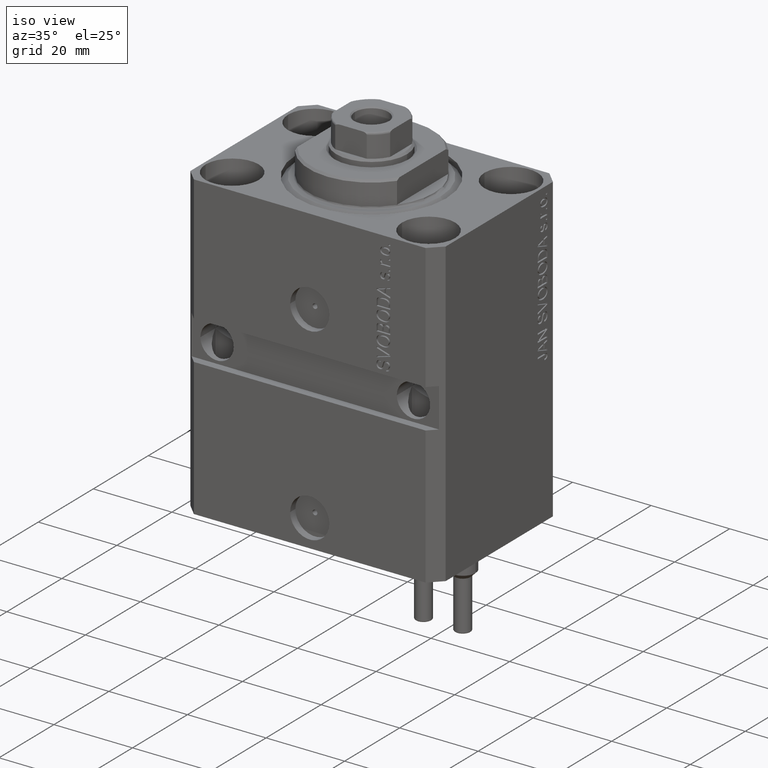
[diagram: clean part render]
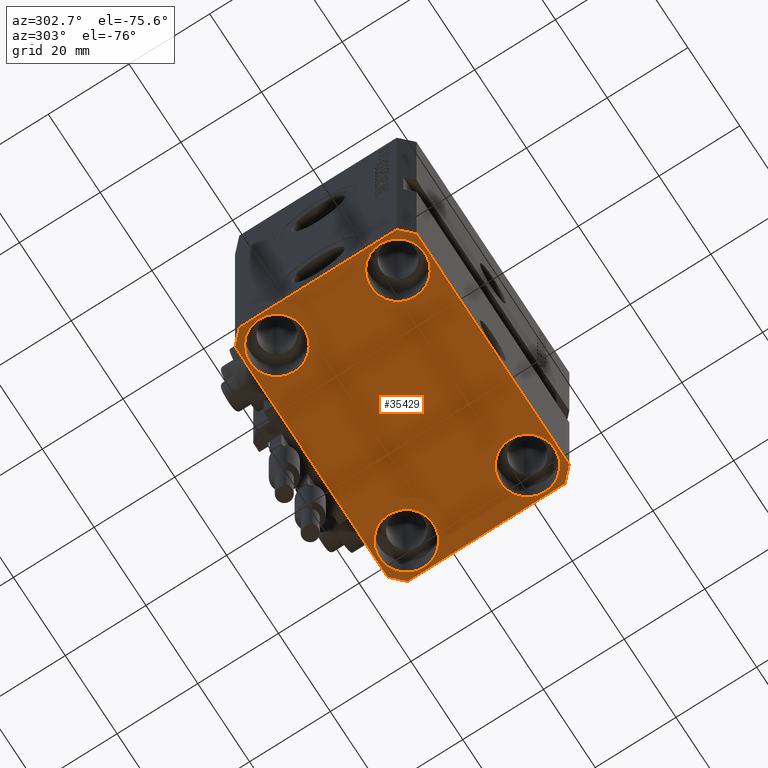
[diagram: tour spotlight — one face highlighted and labeled with its STEP entity id]
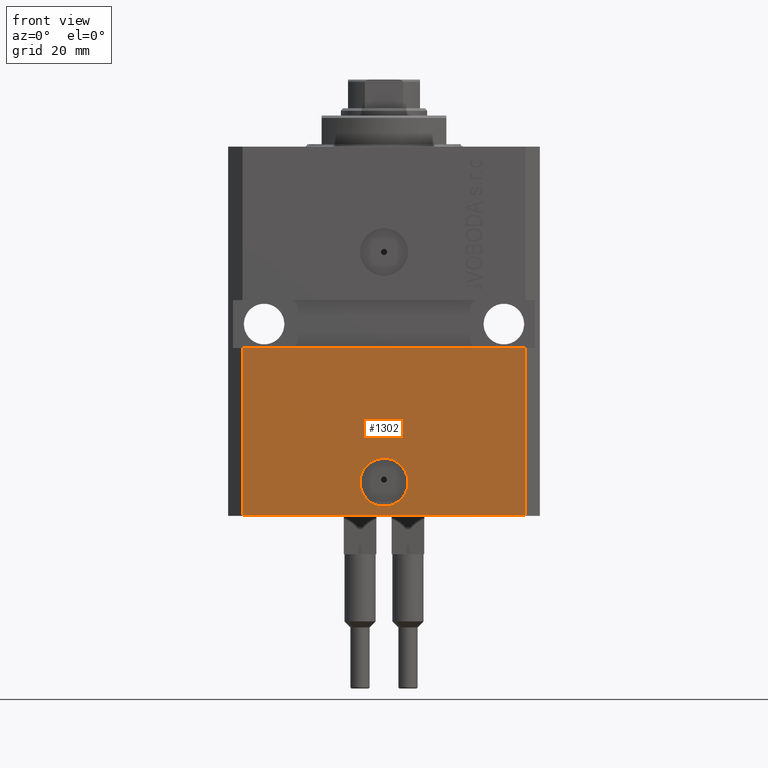
[diagram: tour spotlight — one face highlighted and labeled with its STEP entity id]
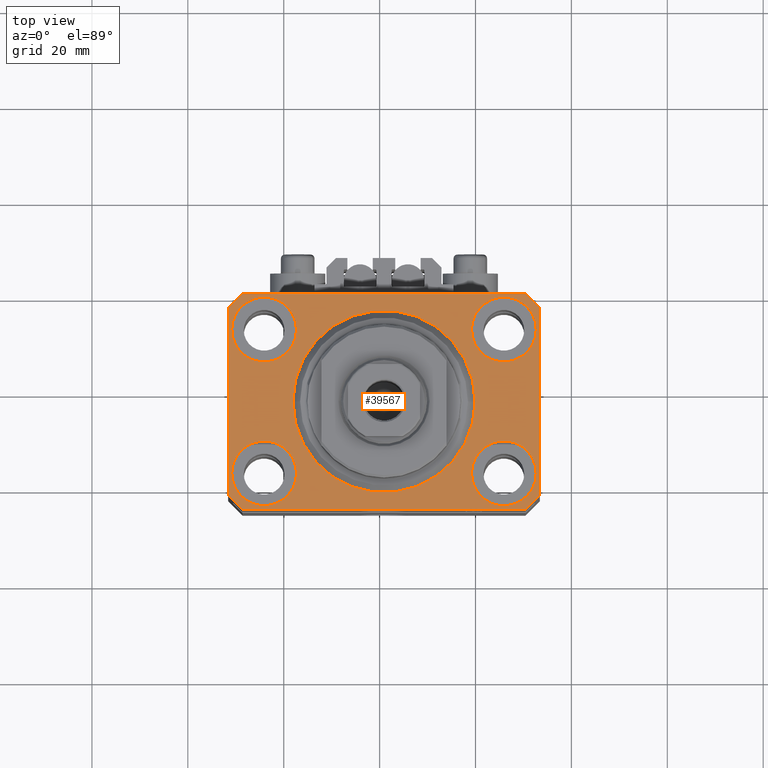
[diagram: tour spotlight — one face highlighted and labeled with its STEP entity id]
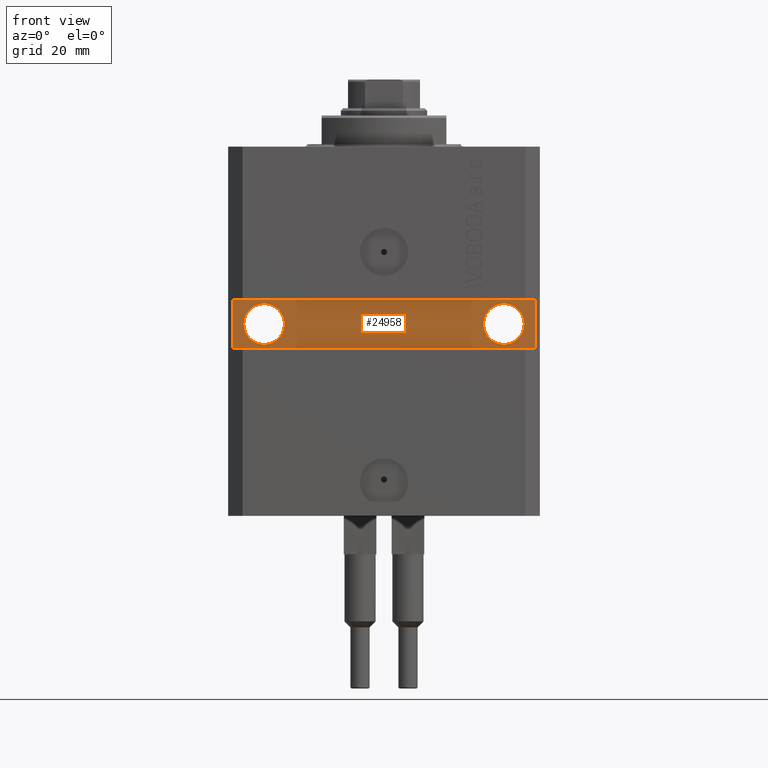
[diagram: tour spotlight — one face highlighted and labeled with its STEP entity id]
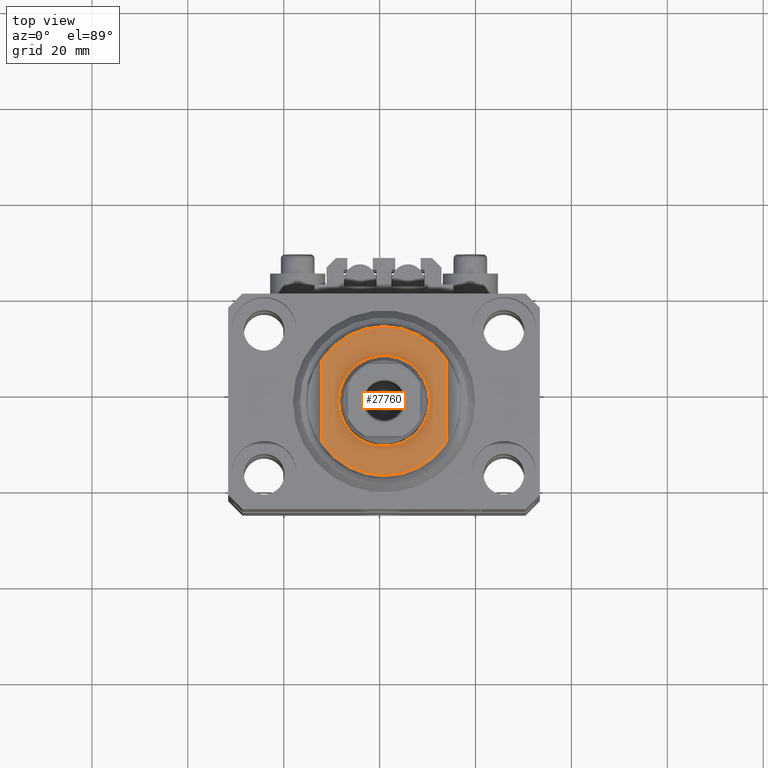
[diagram: tour spotlight — one face highlighted and labeled with its STEP entity id]
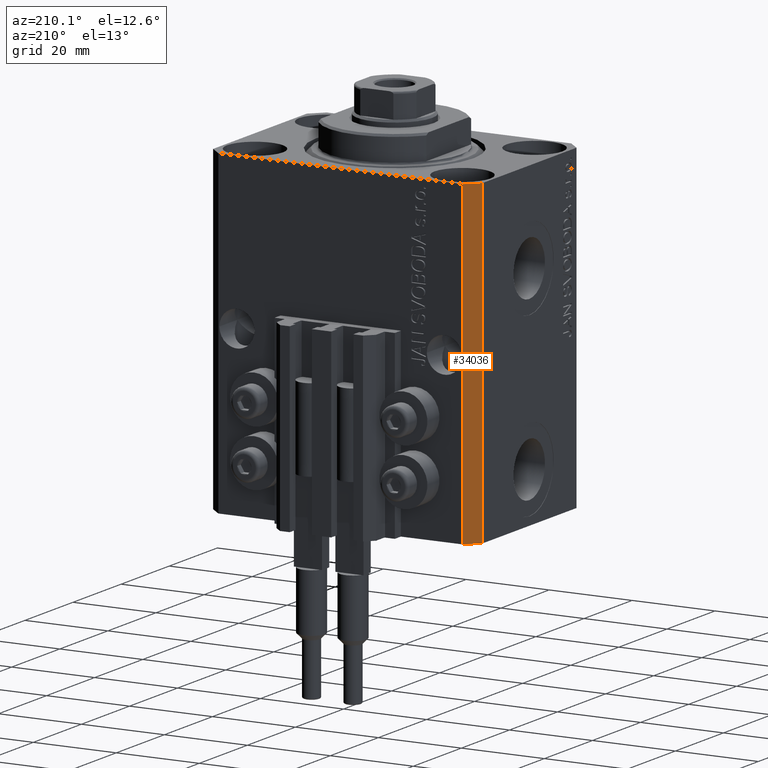
[diagram: tour spotlight — one face highlighted and labeled with its STEP entity id]
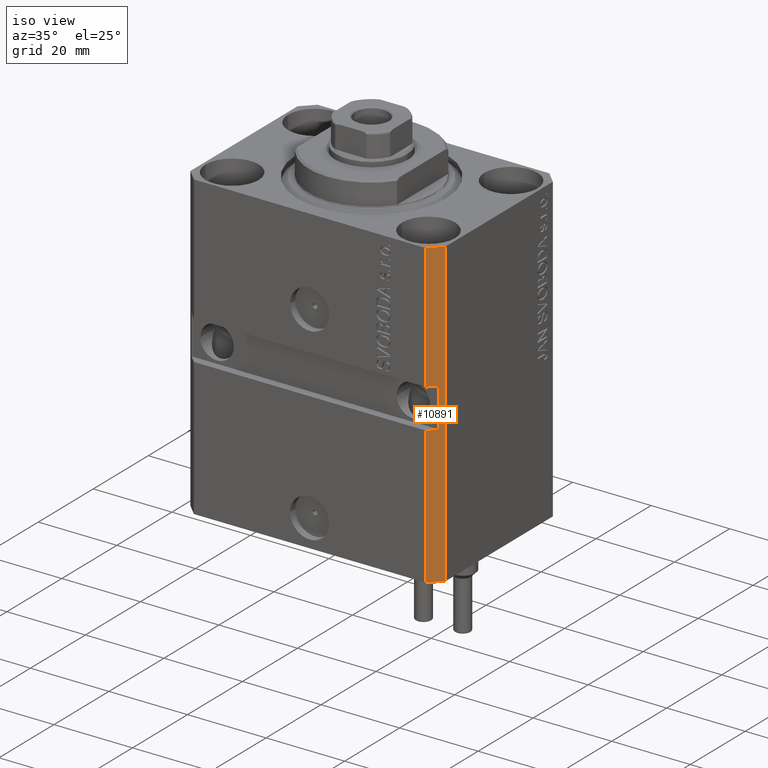
[diagram: tour spotlight — one face highlighted and labeled with its STEP entity id]
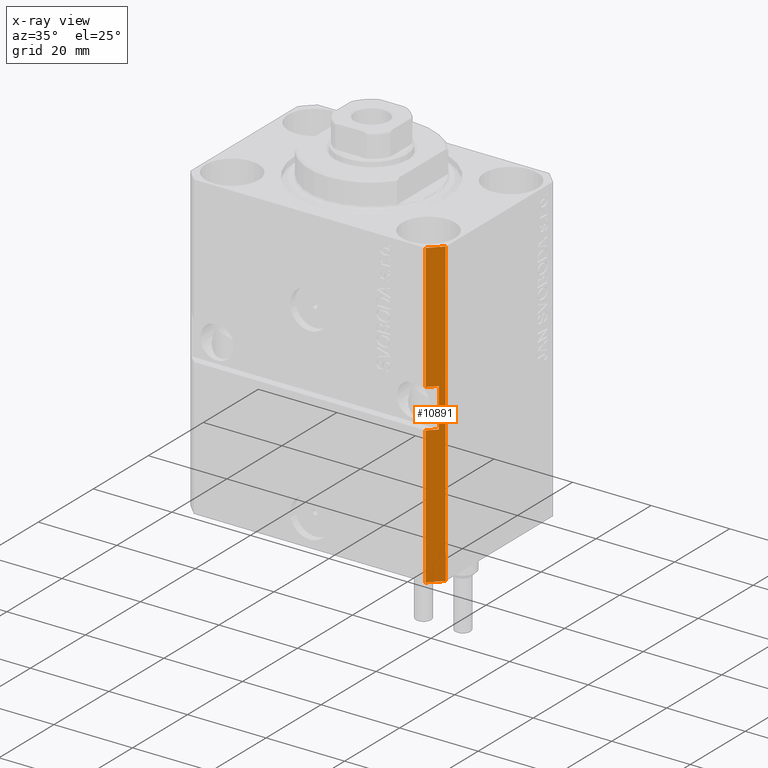
[diagram: x-ray of the same camera — body ghosted, this tour face saturated]
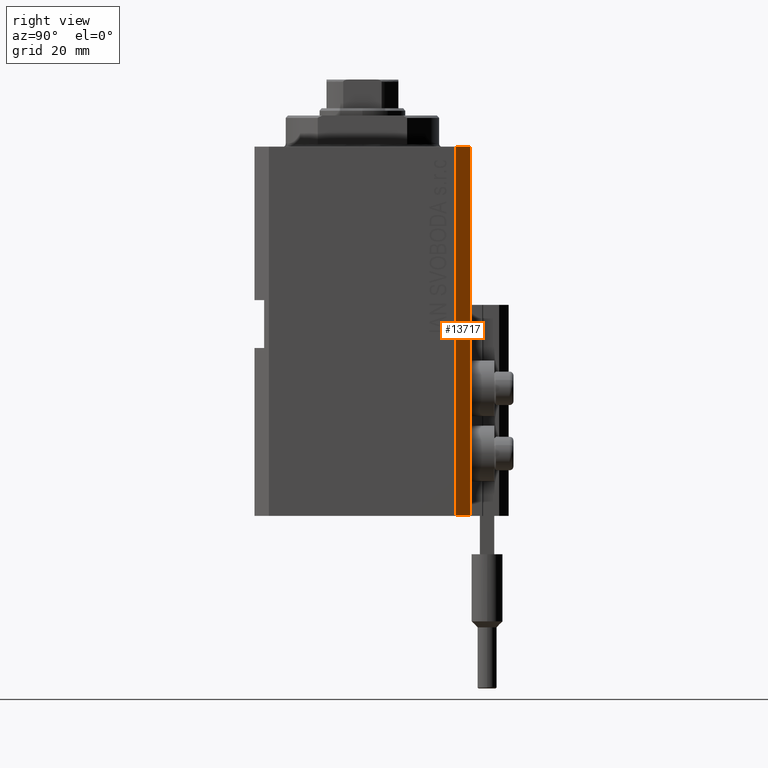
[diagram: tour spotlight — one face highlighted and labeled with its STEP entity id]
A machine part: a face-by-face anatomy tour. The part has 1119 B-rep faces; the first image is the clean iso view, then the 8 largest visible faces are spotlighted one at a time (largest first), each with its STEP entity span.

Face 1 — auxiliary view, entity #35429. In plain terms, the highlighted planar face has unit normal (0, 0, 1).
Definition (entity closure, byte-faithful):
#181 = CARTESIAN_POINT ( 'NONE',  ( 18.25000000004154543, 15.00000000000000888, -77.00000000000000000 ) ) ;
#194 = CARTESIAN_POINT ( 'NONE',  ( 29.49999999999650413, -22.49999999999949196, -77.00000000000000000 ) ) ;
#901 = CIRCLE ( 'NONE', #14847, 6.749999999958452790 ) ;
#1076 = CARTESIAN_POINT ( 'NONE',  ( -25.00000000000000355, -15.00000000000000000, -77.00000000000000000 ) ) ;
#1213 = CARTESIAN_POINT ( 'NONE',  ( -31.75000000004154899, -15.00000000000000000, -77.00000000000000000 ) ) ;
#1489 = DIRECTION ( 'NONE',  ( -1.000000000000000000, -2.352167425053553784E-16, 0.000000000000000000 ) ) ;
#2154 = CARTESIAN_POINT ( 'NONE',  ( 29.49999999999707967, 22.49999999999951328, -77.00000000000000000 ) ) ;
#2239 = ORIENTED_EDGE ( 'NONE', *, *, #25468, .F. ) ;
#3737 = CARTESIAN_POINT ( 'NONE',  ( 31.74999999997746869, -15.00000000000000000, -77.00000000000000000 ) ) ;
#3877 = EDGE_CURVE ( 'NONE', #16765, #36095, #39662, .T. ) ;
#3886 = DIRECTION ( 'NONE',  ( 0.7071067811865474617, -0.7071067811865474617, 0.000000000000000000 ) ) ;
#3991 = ORIENTED_EDGE ( 'NONE', *, *, #22191, .F. ) ;
#4217 = VECTOR ( 'NONE', #4449, 1000.000000000000000 ) ;
#4270 = DIRECTION ( 'NONE',  ( 1.000000000000000000, 0.000000000000000000, 0.000000000000000000 ) ) ;
#4275 = VERTEX_POINT ( 'NONE', #37353 ) ;
#4445 = EDGE_LOOP ( 'NONE', ( #30600, #32369 ) ) ;
#4449 = DIRECTION ( 'NONE',  ( 0.000000000000000000, -1.000000000000000000, 0.000000000000000000 ) ) ;
#4969 = ORIENTED_EDGE ( 'NONE', *, *, #43478, .F. ) ;
#5005 = EDGE_LOOP ( 'NONE', ( #33991, #40709 ) ) ;
#5171 = VERTEX_POINT ( 'NONE', #31210 ) ;
#5188 = EDGE_CURVE ( 'NONE', #28164, #16553, #29612, .T. ) ;
#5459 = CARTESIAN_POINT ( 'NONE',  ( 18.25000000002253842, -15.00000000000000000, -77.00000000000000000 ) ) ;
#5704 = CARTESIAN_POINT ( 'NONE',  ( 29.49999999999650413, -22.49999999999949196, -77.00000000000000000 ) ) ;
#5903 = DIRECTION ( 'NONE',  ( -0.7071067811865352493, 0.7071067811865597852, 0.000000000000000000 ) ) ;
#6093 = LINE ( 'NONE', #47526, #28925 ) ;
#7668 = DIRECTION ( 'NONE',  ( 1.000000000000000000, 0.000000000000000000, 0.000000000000000000 ) ) ;
#7725 = EDGE_CURVE ( 'NONE', #16553, #43922, #39478, .T. ) ;
#7816 = VERTEX_POINT ( 'NONE', #181 ) ;
#8794 = EDGE_LOOP ( 'NONE', ( #42603, #3991, #35509, #2239, #26176, #22117, #4969, #25549 ) ) ;
#9260 = CIRCLE ( 'NONE', #30987, 6.750000000022533087 ) ;
#9324 = CARTESIAN_POINT ( 'NONE',  ( 32.49999999999651124, -19.49999999999949196, -77.00000000000000000 ) ) ;
#11079 = FACE_BOUND ( 'NONE', #39778, .T. ) ;
#11171 = VERTEX_POINT ( 'NONE', #5459 ) ;
#11288 = DIRECTION ( 'NONE',  ( 1.000000000000000000, 0.000000000000000000, 0.000000000000000000 ) ) ;
#11546 = FACE_OUTER_BOUND ( 'NONE', #8794, .T. ) ;
#11553 = DIRECTION ( 'NONE',  ( 1.334402673828349134E-14, 1.000000000000000000, 0.000000000000000000 ) ) ;
#11592 = CARTESIAN_POINT ( 'NONE',  ( -32.49999999999650413, 19.49999999999949907, -77.00000000000000000 ) ) ;
#11789 = FACE_BOUND ( 'NONE', #4445, .T. ) ;
#12075 = CARTESIAN_POINT ( 'NONE',  ( 24.99999999999999645, 15.00000000000000888, -77.00000000000000000 ) ) ;
#12681 = EDGE_CURVE ( 'NONE', #4275, #29171, #43531, .T. ) ;
#13870 = VERTEX_POINT ( 'NONE', #9324 ) ;
#14083 = AXIS2_PLACEMENT_3D ( 'NONE', #31128, #25051, #18264 ) ;
#14388 = EDGE_CURVE ( 'NONE', #19882, #11171, #19592, .T. ) ;
#14847 = AXIS2_PLACEMENT_3D ( 'NONE', #12075, #41204, #15718 ) ;
#14941 = DIRECTION ( 'NONE',  ( 1.000000000000000000, 0.000000000000000000, 0.000000000000000000 ) ) ;
#14945 = CARTESIAN_POINT ( 'NONE',  ( 0.000000000000000000, 0.000000000000000000, -77.00000000000000000 ) ) ;
#15191 = PLANE ( 'NONE',  #37362 ) ;
#15222 = LINE ( 'NONE', #194, #23170 ) ;
#15226 = ORIENTED_EDGE ( 'NONE', *, *, #24905, .T. ) ;
#15718 = DIRECTION ( 'NONE',  ( 1.000000000000000000, 0.000000000000000000, 0.000000000000000000 ) ) ;
#15951 = CARTESIAN_POINT ( 'NONE',  ( -29.49999999999650413, -22.49999999999949907, -77.00000000000000000 ) ) ;
#16348 = EDGE_CURVE ( 'NONE', #33525, #16765, #6093, .T. ) ;
#16553 = VERTEX_POINT ( 'NONE', #15951 ) ;
#16555 = DIRECTION ( 'NONE',  ( -0.000000000000000000, -0.000000000000000000, 1.000000000000000000 ) ) ;
#16765 = VERTEX_POINT ( 'NONE', #47943 ) ;
#17056 = CARTESIAN_POINT ( 'NONE',  ( 32.49999999999702993, 19.49999999999945999, -77.00000000000000000 ) ) ;
#17269 = AXIS2_PLACEMENT_3D ( 'NONE', #39341, #16555, #46641 ) ;
#17577 = DIRECTION ( 'NONE',  ( -0.000000000000000000, -0.000000000000000000, 1.000000000000000000 ) ) ;
#17841 = DIRECTION ( 'NONE',  ( -0.7071067811865474617, -0.7071067811865474617, 0.000000000000000000 ) ) ;
#18264 = DIRECTION ( 'NONE',  ( 1.000000000000000000, 0.000000000000000000, 0.000000000000000000 ) ) ;
#18266 = ORIENTED_EDGE ( 'NONE', *, *, #29845, .T. ) ;
#18273 = ORIENTED_EDGE ( 'NONE', *, *, #12681, .T. ) ;
#18602 = DIRECTION ( 'NONE',  ( -0.000000000000000000, -0.000000000000000000, 1.000000000000000000 ) ) ;
#19592 = CIRCLE ( 'NONE', #22665, 6.749999999977465137 ) ;
#19882 = VERTEX_POINT ( 'NONE', #3737 ) ;
#21144 = AXIS2_PLACEMENT_3D ( 'NONE', #26133, #18602, #14941 ) ;
#22117 = ORIENTED_EDGE ( 'NONE', *, *, #5188, .F. ) ;
#22191 = EDGE_CURVE ( 'NONE', #33995, #33525, #47132, .T. ) ;
#22665 = AXIS2_PLACEMENT_3D ( 'NONE', #29276, #44069, #7668 ) ;
#22901 = CARTESIAN_POINT ( 'NONE',  ( -32.49999999999650413, 19.49999999999949907, -77.00000000000000000 ) ) ;
#23170 = VECTOR ( 'NONE', #29797, 1000.000000000000000 ) ;
#23355 = CARTESIAN_POINT ( 'NONE',  ( 32.49999999999702993, 19.49999999999945999, -77.00000000000000000 ) ) ;
#23421 = DIRECTION ( 'NONE',  ( -0.000000000000000000, -0.000000000000000000, 1.000000000000000000 ) ) ;
#24238 = AXIS2_PLACEMENT_3D ( 'NONE', #41384, #23421, #4270 ) ;
#24905 = EDGE_CURVE ( 'NONE', #42551, #5171, #44090, .T. ) ;
#25051 = DIRECTION ( 'NONE',  ( -0.000000000000000000, -0.000000000000000000, 1.000000000000000000 ) ) ;
#25468 = EDGE_CURVE ( 'NONE', #43922, #13870, #15222, .T. ) ;
#25549 = ORIENTED_EDGE ( 'NONE', *, *, #3877, .F. ) ;
#25896 = FACE_BOUND ( 'NONE', #43511, .T. ) ;
#26133 = CARTESIAN_POINT ( 'NONE',  ( 25.00000000000000355, -15.00000000000000000, -77.00000000000000000 ) ) ;
#26137 = FACE_BOUND ( 'NONE', #5005, .T. ) ;
#26176 = ORIENTED_EDGE ( 'NONE', *, *, #7725, .F. ) ;
#28164 = VERTEX_POINT ( 'NONE', #41496 ) ;
#28925 = VECTOR ( 'NONE', #1489, 1000.000000000000000 ) ;
#29171 = VERTEX_POINT ( 'NONE', #40484 ) ;
#29276 = CARTESIAN_POINT ( 'NONE',  ( 25.00000000000000355, -15.00000000000000000, -77.00000000000000000 ) ) ;
#29612 = LINE ( 'NONE', #29858, #38752 ) ;
#29797 = DIRECTION ( 'NONE',  ( 0.7071067811865483499, 0.7071067811865466846, 0.000000000000000000 ) ) ;
#29845 = EDGE_CURVE ( 'NONE', #29171, #4275, #9260, .T. ) ;
#29858 = CARTESIAN_POINT ( 'NONE',  ( -32.49999999999650413, -19.49999999999949907, -77.00000000000000000 ) ) ;
#29941 = LINE ( 'NONE', #22901, #4217 ) ;
#30015 = LINE ( 'NONE', #45760, #46855 ) ;
#30169 = AXIS2_PLACEMENT_3D ( 'NONE', #1076, #45252, #11288 ) ;
#30600 = ORIENTED_EDGE ( 'NONE', *, *, #37166, .T. ) ;
#30987 = AXIS2_PLACEMENT_3D ( 'NONE', #36484, #17577, #43771 ) ;
#31128 = CARTESIAN_POINT ( 'NONE',  ( -25.00000000000000355, 15.00000000000000000, -77.00000000000000000 ) ) ;
#31210 = CARTESIAN_POINT ( 'NONE',  ( -18.24999999995845812, -15.00000000000000000, -77.00000000000000000 ) ) ;
#31469 = CARTESIAN_POINT ( 'NONE',  ( 31.74999999995845101, 15.00000000000000888, -77.00000000000000000 ) ) ;
#32369 = ORIENTED_EDGE ( 'NONE', *, *, #14388, .T. ) ;
#32483 = VECTOR ( 'NONE', #17841, 1000.000000000000114 ) ;
#33394 = DIRECTION ( 'NONE',  ( 1.000000000000000000, 0.000000000000000000, -0.000000000000000000 ) ) ;
#33525 = VERTEX_POINT ( 'NONE', #2154 ) ;
#33991 = ORIENTED_EDGE ( 'NONE', *, *, #36411, .T. ) ;
#33995 = VERTEX_POINT ( 'NONE', #23355 ) ;
#34562 = EDGE_CURVE ( 'NONE', #36382, #7816, #901, .T. ) ;
#35429 = ADVANCED_FACE ( 'NONE', ( #25896, #11789, #26137, #11079, #11546 ), #15191, .F. ) ;
#35509 = ORIENTED_EDGE ( 'NONE', *, *, #45131, .F. ) ;
#35845 = CARTESIAN_POINT ( 'NONE',  ( -29.49999999999650413, -22.49999999999949907, -77.00000000000000000 ) ) ;
#36095 = VERTEX_POINT ( 'NONE', #11592 ) ;
#36264 = CARTESIAN_POINT ( 'NONE',  ( -29.49999999999650413, 22.49999999999949907, -77.00000000000000000 ) ) ;
#36382 = VERTEX_POINT ( 'NONE', #31469 ) ;
#36411 = EDGE_CURVE ( 'NONE', #7816, #36382, #41280, .T. ) ;
#36484 = CARTESIAN_POINT ( 'NONE',  ( -25.00000000000000355, 15.00000000000000000, -77.00000000000000000 ) ) ;
#37166 = EDGE_CURVE ( 'NONE', #11171, #19882, #37392, .T. ) ;
#37353 = CARTESIAN_POINT ( 'NONE',  ( -31.75000000002253842, 15.00000000000000000, -77.00000000000000000 ) ) ;
#37362 = AXIS2_PLACEMENT_3D ( 'NONE', #14945, #37747, #33394 ) ;
#37392 = CIRCLE ( 'NONE', #21144, 6.749999999977465137 ) ;
#37715 = EDGE_CURVE ( 'NONE', #5171, #42551, #39734, .T. ) ;
#37747 = DIRECTION ( 'NONE',  ( 0.000000000000000000, 0.000000000000000000, 1.000000000000000000 ) ) ;
#38715 = VECTOR ( 'NONE', #44089, 1000.000000000000000 ) ;
#38752 = VECTOR ( 'NONE', #3886, 1000.000000000000114 ) ;
#39341 = CARTESIAN_POINT ( 'NONE',  ( -25.00000000000000355, -15.00000000000000000, -77.00000000000000000 ) ) ;
#39478 = LINE ( 'NONE', #35845, #38715 ) ;
#39662 = LINE ( 'NONE', #36264, #32483 ) ;
#39734 = CIRCLE ( 'NONE', #17269, 6.750000000041541881 ) ;
#39778 = EDGE_LOOP ( 'NONE', ( #18273, #18266 ) ) ;
#40484 = CARTESIAN_POINT ( 'NONE',  ( -18.24999999997747224, 15.00000000000000000, -77.00000000000000000 ) ) ;
#40626 = VECTOR ( 'NONE', #5903, 1000.000000000000000 ) ;
#40709 = ORIENTED_EDGE ( 'NONE', *, *, #34562, .T. ) ;
#41204 = DIRECTION ( 'NONE',  ( -0.000000000000000000, -0.000000000000000000, 1.000000000000000000 ) ) ;
#41280 = CIRCLE ( 'NONE', #24238, 6.749999999958452790 ) ;
#41282 = ORIENTED_EDGE ( 'NONE', *, *, #37715, .T. ) ;
#41384 = CARTESIAN_POINT ( 'NONE',  ( 24.99999999999999645, 15.00000000000000888, -77.00000000000000000 ) ) ;
#41496 = CARTESIAN_POINT ( 'NONE',  ( -32.49999999999650413, -19.49999999999949907, -77.00000000000000000 ) ) ;
#42551 = VERTEX_POINT ( 'NONE', #1213 ) ;
#42603 = ORIENTED_EDGE ( 'NONE', *, *, #16348, .F. ) ;
#43478 = EDGE_CURVE ( 'NONE', #36095, #28164, #29941, .T. ) ;
#43511 = EDGE_LOOP ( 'NONE', ( #15226, #41282 ) ) ;
#43531 = CIRCLE ( 'NONE', #14083, 6.750000000022533087 ) ;
#43771 = DIRECTION ( 'NONE',  ( 1.000000000000000000, 0.000000000000000000, 0.000000000000000000 ) ) ;
#43922 = VERTEX_POINT ( 'NONE', #5704 ) ;
#44069 = DIRECTION ( 'NONE',  ( -0.000000000000000000, -0.000000000000000000, 1.000000000000000000 ) ) ;
#44089 = DIRECTION ( 'NONE',  ( 1.000000000000000000, 1.176083712526788232E-16, 0.000000000000000000 ) ) ;
#44090 = CIRCLE ( 'NONE', #30169, 6.750000000041541881 ) ;
#45131 = EDGE_CURVE ( 'NONE', #13870, #33995, #30015, .T. ) ;
#45252 = DIRECTION ( 'NONE',  ( -0.000000000000000000, -0.000000000000000000, 1.000000000000000000 ) ) ;
#45760 = CARTESIAN_POINT ( 'NONE',  ( 32.49999999999651124, -19.49999999999949196, -77.00000000000000000 ) ) ;
#46641 = DIRECTION ( 'NONE',  ( 1.000000000000000000, 0.000000000000000000, 0.000000000000000000 ) ) ;
#46855 = VECTOR ( 'NONE', #11553, 1000.000000000000000 ) ;
#47132 = LINE ( 'NONE', #17056, #40626 ) ;
#47526 = CARTESIAN_POINT ( 'NONE',  ( 29.49999999999707967, 22.49999999999951328, -77.00000000000000000 ) ) ;
#47943 = CARTESIAN_POINT ( 'NONE',  ( -29.49999999999650413, 22.49999999999949907, -77.00000000000000000 ) ) ;

Face 2 — front view, entity #1302. In plain terms, the highlighted planar face has unit normal (0, -1, 0).
Definition (entity closure, byte-faithful):
#778 = ORIENTED_EDGE ( 'NONE', *, *, #38879, .F. ) ;
#1302 = ADVANCED_FACE ( 'NONE', ( #29051, #18132 ), #40181, .T. ) ;
#2072 = VERTEX_POINT ( 'NONE', #42412 ) ;
#5195 = DIRECTION ( 'NONE',  ( 0.000000000000000000, 0.000000000000000000, 1.000000000000000000 ) ) ;
#5704 = CARTESIAN_POINT ( 'NONE',  ( 29.49999999999650413, -22.49999999999949196, -77.00000000000000000 ) ) ;
#7539 = CARTESIAN_POINT ( 'NONE',  ( 2.646188353185214061E-15, -22.49999999999949551, -69.99999999999998579 ) ) ;
#7725 = EDGE_CURVE ( 'NONE', #16553, #43922, #39478, .T. ) ;
#8813 = EDGE_LOOP ( 'NONE', ( #28644, #19686, #8991, #23800 ) ) ;
#8991 = ORIENTED_EDGE ( 'NONE', *, *, #7725, .T. ) ;
#10209 = DIRECTION ( 'NONE',  ( 1.000000000000000000, 0.000000000000000000, 0.000000000000000000 ) ) ;
#11234 = VECTOR ( 'NONE', #19000, 1000.000000000000000 ) ;
#12348 = VERTEX_POINT ( 'NONE', #38230 ) ;
#12469 = CARTESIAN_POINT ( 'NONE',  ( 29.49999999999650413, -22.49999999999949196, -77.00000000000000000 ) ) ;
#15951 = CARTESIAN_POINT ( 'NONE',  ( -29.49999999999650413, -22.49999999999949907, -77.00000000000000000 ) ) ;
#16553 = VERTEX_POINT ( 'NONE', #15951 ) ;
#18132 = FACE_OUTER_BOUND ( 'NONE', #8813, .T. ) ;
#18292 = EDGE_CURVE ( 'NONE', #22754, #12348, #28156, .T. ) ;
#18535 = AXIS2_PLACEMENT_3D ( 'NONE', #7539, #22342, #38555 ) ;
#19000 = DIRECTION ( 'NONE',  ( 0.000000000000000000, 0.000000000000000000, 1.000000000000000000 ) ) ;
#19297 = LINE ( 'NONE', #12469, #40715 ) ;
#19686 = ORIENTED_EDGE ( 'NONE', *, *, #22437, .F. ) ;
#21513 = DIRECTION ( 'NONE',  ( 1.000000000000000000, 1.176083712526788232E-16, 0.000000000000000000 ) ) ;
#22342 = DIRECTION ( 'NONE',  ( 1.176083712526788232E-16, -1.000000000000000000, 0.000000000000000000 ) ) ;
#22437 = EDGE_CURVE ( 'NONE', #16553, #22754, #46074, .T. ) ;
#22754 = VERTEX_POINT ( 'NONE', #47198 ) ;
#23800 = ORIENTED_EDGE ( 'NONE', *, *, #47056, .T. ) ;
#28156 = LINE ( 'NONE', #39528, #30527 ) ;
#28280 = EDGE_CURVE ( 'NONE', #2072, #39492, #34896, .T. ) ;
#28395 = DIRECTION ( 'NONE',  ( 1.000000000000000000, 1.067522139062765303E-16, 1.067522139062765303E-16 ) ) ;
#28644 = ORIENTED_EDGE ( 'NONE', *, *, #18292, .F. ) ;
#29051 = FACE_BOUND ( 'NONE', #44608, .T. ) ;
#30527 = VECTOR ( 'NONE', #28395, 1000.000000000000000 ) ;
#31259 = CARTESIAN_POINT ( 'NONE',  ( -29.49999999999650413, -22.49999999999949907, -77.00000000000000000 ) ) ;
#33703 = ORIENTED_EDGE ( 'NONE', *, *, #28280, .F. ) ;
#34896 = CIRCLE ( 'NONE', #18535, 5.000000000000005329 ) ;
#35534 = AXIS2_PLACEMENT_3D ( 'NONE', #40438, #40684, #21513 ) ;
#35845 = CARTESIAN_POINT ( 'NONE',  ( -29.49999999999650413, -22.49999999999949907, -77.00000000000000000 ) ) ;
#38218 = CIRCLE ( 'NONE', #45989, 5.000000000000005329 ) ;
#38230 = CARTESIAN_POINT ( 'NONE',  ( 29.49999999999650058, -22.49999999999949196, -41.99999999999998579 ) ) ;
#38555 = DIRECTION ( 'NONE',  ( 1.000000000000000000, 0.000000000000000000, 0.000000000000000000 ) ) ;
#38715 = VECTOR ( 'NONE', #44089, 1000.000000000000000 ) ;
#38879 = EDGE_CURVE ( 'NONE', #39492, #2072, #38218, .T. ) ;
#39478 = LINE ( 'NONE', #35845, #38715 ) ;
#39492 = VERTEX_POINT ( 'NONE', #45565 ) ;
#39528 = CARTESIAN_POINT ( 'NONE',  ( -32.49999999999650413, -22.49999999999949907, -41.99999999999999289 ) ) ;
#39568 = DIRECTION ( 'NONE',  ( 1.176083712526788232E-16, -1.000000000000000000, 0.000000000000000000 ) ) ;
#40181 = PLANE ( 'NONE',  #35534 ) ;
#40438 = CARTESIAN_POINT ( 'NONE',  ( -29.49999999999650413, -22.49999999999949907, -77.00000000000000000 ) ) ;
#40684 = DIRECTION ( 'NONE',  ( 1.176083712526788232E-16, -1.000000000000000000, 0.000000000000000000 ) ) ;
#40715 = VECTOR ( 'NONE', #5195, 1000.000000000000000 ) ;
#42412 = CARTESIAN_POINT ( 'NONE',  ( 5.000000000000007994, -22.49999999999949551, -69.99999999999998579 ) ) ;
#43922 = VERTEX_POINT ( 'NONE', #5704 ) ;
#44089 = DIRECTION ( 'NONE',  ( 1.000000000000000000, 1.176083712526788232E-16, 0.000000000000000000 ) ) ;
#44608 = EDGE_LOOP ( 'NONE', ( #33703, #778 ) ) ;
#45565 = CARTESIAN_POINT ( 'NONE',  ( -5.000000000000002665, -22.49999999999949551, -69.99999999999998579 ) ) ;
#45989 = AXIS2_PLACEMENT_3D ( 'NONE', #47595, #39568, #10209 ) ;
#46074 = LINE ( 'NONE', #31259, #11234 ) ;
#47056 = EDGE_CURVE ( 'NONE', #43922, #12348, #19297, .T. ) ;
#47198 = CARTESIAN_POINT ( 'NONE',  ( -29.49999999999650413, -22.49999999999949907, -41.99999999999999289 ) ) ;
#47595 = CARTESIAN_POINT ( 'NONE',  ( 2.646188353185214061E-15, -22.49999999999949551, -69.99999999999998579 ) ) ;

Face 3 — top view, entity #39567. In plain terms, the highlighted planar face has unit normal (0, 0, 1).
Definition (entity closure, byte-faithful):
#67 = DIRECTION ( 'NONE',  ( 0.000000000000000000, 0.000000000000000000, 1.000000000000000000 ) ) ;
#168 = VERTEX_POINT ( 'NONE', #25510 ) ;
#189 = DIRECTION ( 'NONE',  ( 1.000000000000000000, 0.000000000000000000, 0.000000000000000000 ) ) ;
#1721 = CARTESIAN_POINT ( 'NONE',  ( 19.00000000000000000, 0.000000000000000000, 0.000000000000000000 ) ) ;
#2110 = FACE_BOUND ( 'NONE', #38660, .T. ) ;
#2508 = CARTESIAN_POINT ( 'NONE',  ( -29.49999999999650413, 22.49999999999949907, 0.000000000000000000 ) ) ;
#2589 = CARTESIAN_POINT ( 'NONE',  ( -25.00000000000000355, 15.00000000000000000, 0.000000000000000000 ) ) ;
#2617 = AXIS2_PLACEMENT_3D ( 'NONE', #13975, #42874, #17873 ) ;
#3517 = CARTESIAN_POINT ( 'NONE',  ( 29.49999999999707967, 22.49999999999951328, 0.000000000000000000 ) ) ;
#3932 = EDGE_CURVE ( 'NONE', #3974, #12393, #11575, .T. ) ;
#3953 = AXIS2_PLACEMENT_3D ( 'NONE', #40640, #29246, #44538 ) ;
#3974 = VERTEX_POINT ( 'NONE', #33839 ) ;
#4038 = LINE ( 'NONE', #25895, #45926 ) ;
#4846 = AXIS2_PLACEMENT_3D ( 'NONE', #2589, #17402, #43832 ) ;
#4941 = VERTEX_POINT ( 'NONE', #14193 ) ;
#5415 = ORIENTED_EDGE ( 'NONE', *, *, #8009, .T. ) ;
#5764 = CARTESIAN_POINT ( 'NONE',  ( -29.49999999999650413, -22.49999999999949907, 0.000000000000000000 ) ) ;
#5901 = ORIENTED_EDGE ( 'NONE', *, *, #7346, .T. ) ;
#6561 = VERTEX_POINT ( 'NONE', #47831 ) ;
#6572 = ORIENTED_EDGE ( 'NONE', *, *, #10931, .T. ) ;
#6614 = VERTEX_POINT ( 'NONE', #25752 ) ;
#7150 = ORIENTED_EDGE ( 'NONE', *, *, #24690, .F. ) ;
#7346 = EDGE_CURVE ( 'NONE', #7367, #22091, #43513, .T. ) ;
#7367 = VERTEX_POINT ( 'NONE', #46932 ) ;
#7678 = DIRECTION ( 'NONE',  ( 0.000000000000000000, 0.000000000000000000, 1.000000000000000000 ) ) ;
#7718 = CARTESIAN_POINT ( 'NONE',  ( -19.00000000000000000, 2.326828918379970970E-15, 0.000000000000000000 ) ) ;
#7859 = VECTOR ( 'NONE', #30220, 1000.000000000000000 ) ;
#8009 = EDGE_CURVE ( 'NONE', #15765, #22430, #29968, .T. ) ;
#8014 = CIRCLE ( 'NONE', #35108, 6.749999999977465137 ) ;
#9465 = ORIENTED_EDGE ( 'NONE', *, *, #33022, .T. ) ;
#10023 = CARTESIAN_POINT ( 'NONE',  ( -32.49999999999650413, -19.49999999999949907, 0.000000000000000000 ) ) ;
#10876 = CARTESIAN_POINT ( 'NONE',  ( 24.99999999999999645, 15.00000000000000888, 0.000000000000000000 ) ) ;
#10931 = EDGE_CURVE ( 'NONE', #22091, #39874, #43120, .T. ) ;
#11494 = EDGE_CURVE ( 'NONE', #26575, #6561, #20150, .T. ) ;
#11575 = CIRCLE ( 'NONE', #17775, 6.750000000041541881 ) ;
#11673 = DIRECTION ( 'NONE',  ( 1.334402673828349134E-14, 1.000000000000000000, 0.000000000000000000 ) ) ;
#11818 = CIRCLE ( 'NONE', #4846, 6.750000000022533087 ) ;
#11910 = VERTEX_POINT ( 'NONE', #18195 ) ;
#11914 = CARTESIAN_POINT ( 'NONE',  ( 25.00000000000000355, -15.00000000000000000, 0.000000000000000000 ) ) ;
#12393 = VERTEX_POINT ( 'NONE', #17824 ) ;
#12546 = ORIENTED_EDGE ( 'NONE', *, *, #15382, .F. ) ;
#13975 = CARTESIAN_POINT ( 'NONE',  ( 0.000000000000000000, 0.000000000000000000, 0.000000000000000000 ) ) ;
#14019 = VECTOR ( 'NONE', #11673, 1000.000000000000000 ) ;
#14193 = CARTESIAN_POINT ( 'NONE',  ( -18.24999999997747224, 15.00000000000000000, 0.000000000000000000 ) ) ;
#14270 = DIRECTION ( 'NONE',  ( 1.000000000000000000, 0.000000000000000000, 0.000000000000000000 ) ) ;
#14334 = EDGE_CURVE ( 'NONE', #46359, #4941, #11818, .T. ) ;
#14448 = EDGE_CURVE ( 'NONE', #6561, #15765, #4038, .T. ) ;
#14787 = ORIENTED_EDGE ( 'NONE', *, *, #20133, .F. ) ;
#14961 = AXIS2_PLACEMENT_3D ( 'NONE', #40921, #7678, #26388 ) ;
#15016 = CIRCLE ( 'NONE', #25875, 6.749999999958452790 ) ;
#15157 = CARTESIAN_POINT ( 'NONE',  ( 25.00000000000000355, -15.00000000000000000, 0.000000000000000000 ) ) ;
#15382 = EDGE_CURVE ( 'NONE', #36022, #23378, #32001, .T. ) ;
#15388 = DIRECTION ( 'NONE',  ( 1.000000000000000000, 0.000000000000000000, 0.000000000000000000 ) ) ;
#15485 = VECTOR ( 'NONE', #29724, 1000.000000000000000 ) ;
#15613 = CARTESIAN_POINT ( 'NONE',  ( 29.49999999999707967, 22.49999999999951328, 0.000000000000000000 ) ) ;
#15765 = VERTEX_POINT ( 'NONE', #15613 ) ;
#16822 = CARTESIAN_POINT ( 'NONE',  ( -31.75000000002253842, 15.00000000000000000, 0.000000000000000000 ) ) ;
#17402 = DIRECTION ( 'NONE',  ( 0.000000000000000000, 0.000000000000000000, 1.000000000000000000 ) ) ;
#17709 = ORIENTED_EDGE ( 'NONE', *, *, #46496, .F. ) ;
#17758 = AXIS2_PLACEMENT_3D ( 'NONE', #15157, #34546, #15388 ) ;
#17775 = AXIS2_PLACEMENT_3D ( 'NONE', #24414, #28763, #42599 ) ;
#17824 = CARTESIAN_POINT ( 'NONE',  ( -18.24999999995846167, -15.00000000000000000, 0.000000000000000000 ) ) ;
#17873 = DIRECTION ( 'NONE',  ( 1.000000000000000000, 0.000000000000000000, -0.000000000000000000 ) ) ;
#17916 = VECTOR ( 'NONE', #39231, 1000.000000000000000 ) ;
#18048 = DIRECTION ( 'NONE',  ( 0.7071067811865474617, -0.7071067811865474617, 0.000000000000000000 ) ) ;
#18195 = CARTESIAN_POINT ( 'NONE',  ( -32.49999999999650413, 19.49999999999949907, 0.000000000000000000 ) ) ;
#18419 = CARTESIAN_POINT ( 'NONE',  ( 29.49999999999650413, -22.49999999999949196, 0.000000000000000000 ) ) ;
#18495 = DIRECTION ( 'NONE',  ( 0.000000000000000000, 0.000000000000000000, 1.000000000000000000 ) ) ;
#18506 = CARTESIAN_POINT ( 'NONE',  ( -25.00000000000000355, 15.00000000000000000, 0.000000000000000000 ) ) ;
#19010 = CARTESIAN_POINT ( 'NONE',  ( 31.74999999995845101, 15.00000000000000888, 0.000000000000000000 ) ) ;
#19053 = EDGE_LOOP ( 'NONE', ( #5415, #24667, #9465, #5901, #6572, #41841, #35717, #36619 ) ) ;
#19074 = LINE ( 'NONE', #33858, #7859 ) ;
#19561 = CARTESIAN_POINT ( 'NONE',  ( 29.49999999999650413, -22.49999999999949196, 0.000000000000000000 ) ) ;
#20133 = EDGE_CURVE ( 'NONE', #6614, #22272, #8014, .T. ) ;
#20150 = LINE ( 'NONE', #44932, #14019 ) ;
#21903 = ORIENTED_EDGE ( 'NONE', *, *, #24361, .F. ) ;
#22091 = VERTEX_POINT ( 'NONE', #40384 ) ;
#22255 = EDGE_LOOP ( 'NONE', ( #42142, #14787 ) ) ;
#22272 = VERTEX_POINT ( 'NONE', #28697 ) ;
#22293 = DIRECTION ( 'NONE',  ( 0.7071067811865483499, 0.7071067811865466846, 0.000000000000000000 ) ) ;
#22430 = VERTEX_POINT ( 'NONE', #46305 ) ;
#22757 = VECTOR ( 'NONE', #47154, 1000.000000000000114 ) ;
#22859 = ORIENTED_EDGE ( 'NONE', *, *, #14334, .F. ) ;
#22994 = AXIS2_PLACEMENT_3D ( 'NONE', #47260, #40934, #189 ) ;
#23378 = VERTEX_POINT ( 'NONE', #1721 ) ;
#24361 = EDGE_CURVE ( 'NONE', #12393, #3974, #43899, .T. ) ;
#24412 = AXIS2_PLACEMENT_3D ( 'NONE', #18506, #67, #43487 ) ;
#24414 = CARTESIAN_POINT ( 'NONE',  ( -25.00000000000000355, -15.00000000000000000, 0.000000000000000000 ) ) ;
#24667 = ORIENTED_EDGE ( 'NONE', *, *, #42320, .T. ) ;
#24690 = EDGE_CURVE ( 'NONE', #23378, #36022, #24864, .T. ) ;
#24864 = CIRCLE ( 'NONE', #3953, 19.00000000000000000 ) ;
#24927 = EDGE_CURVE ( 'NONE', #22272, #6614, #38661, .T. ) ;
#25510 = CARTESIAN_POINT ( 'NONE',  ( 18.25000000004154543, 15.00000000000000888, 0.000000000000000000 ) ) ;
#25752 = CARTESIAN_POINT ( 'NONE',  ( 18.25000000002253842, -15.00000000000000000, 0.000000000000000000 ) ) ;
#25875 = AXIS2_PLACEMENT_3D ( 'NONE', #31527, #41500, #34680 ) ;
#25895 = CARTESIAN_POINT ( 'NONE',  ( 32.49999999999702993, 19.49999999999945999, 0.000000000000000000 ) ) ;
#26388 = DIRECTION ( 'NONE',  ( 1.000000000000000000, 0.000000000000000000, 0.000000000000000000 ) ) ;
#26451 = VERTEX_POINT ( 'NONE', #19010 ) ;
#26575 = VERTEX_POINT ( 'NONE', #41308 ) ;
#27115 = ORIENTED_EDGE ( 'NONE', *, *, #42580, .F. ) ;
#27168 = EDGE_LOOP ( 'NONE', ( #21903, #47753 ) ) ;
#27898 = VECTOR ( 'NONE', #18048, 1000.000000000000114 ) ;
#28086 = FACE_BOUND ( 'NONE', #27168, .T. ) ;
#28697 = CARTESIAN_POINT ( 'NONE',  ( 31.74999999997746869, -15.00000000000000000, 0.000000000000000000 ) ) ;
#28763 = DIRECTION ( 'NONE',  ( 0.000000000000000000, 0.000000000000000000, 1.000000000000000000 ) ) ;
#28943 = CIRCLE ( 'NONE', #44434, 6.749999999958452790 ) ;
#29246 = DIRECTION ( 'NONE',  ( 0.000000000000000000, 0.000000000000000000, 1.000000000000000000 ) ) ;
#29724 = DIRECTION ( 'NONE',  ( -1.000000000000000000, -2.352167425053553784E-16, 0.000000000000000000 ) ) ;
#29968 = LINE ( 'NONE', #3517, #15485 ) ;
#30220 = DIRECTION ( 'NONE',  ( 0.000000000000000000, -1.000000000000000000, 0.000000000000000000 ) ) ;
#31527 = CARTESIAN_POINT ( 'NONE',  ( 24.99999999999999645, 15.00000000000000888, 0.000000000000000000 ) ) ;
#31708 = FACE_OUTER_BOUND ( 'NONE', #19053, .T. ) ;
#32001 = CIRCLE ( 'NONE', #14961, 19.00000000000000000 ) ;
#32660 = FACE_BOUND ( 'NONE', #22255, .T. ) ;
#32709 = DIRECTION ( 'NONE',  ( 0.000000000000000000, 0.000000000000000000, 1.000000000000000000 ) ) ;
#33022 = EDGE_CURVE ( 'NONE', #11910, #7367, #19074, .T. ) ;
#33281 = DIRECTION ( 'NONE',  ( 1.000000000000000000, 0.000000000000000000, 0.000000000000000000 ) ) ;
#33839 = CARTESIAN_POINT ( 'NONE',  ( -31.75000000004154899, -15.00000000000000000, 0.000000000000000000 ) ) ;
#33858 = CARTESIAN_POINT ( 'NONE',  ( -32.49999999999650413, 19.49999999999949907, 0.000000000000000000 ) ) ;
#34487 = EDGE_CURVE ( 'NONE', #39874, #26575, #44380, .T. ) ;
#34546 = DIRECTION ( 'NONE',  ( 0.000000000000000000, 0.000000000000000000, 1.000000000000000000 ) ) ;
#34680 = DIRECTION ( 'NONE',  ( 1.000000000000000000, 0.000000000000000000, 0.000000000000000000 ) ) ;
#35108 = AXIS2_PLACEMENT_3D ( 'NONE', #11914, #18495, #33281 ) ;
#35717 = ORIENTED_EDGE ( 'NONE', *, *, #11494, .T. ) ;
#35750 = LINE ( 'NONE', #2508, #22757 ) ;
#36022 = VERTEX_POINT ( 'NONE', #7718 ) ;
#36318 = EDGE_LOOP ( 'NONE', ( #17709, #22859 ) ) ;
#36619 = ORIENTED_EDGE ( 'NONE', *, *, #14448, .T. ) ;
#37265 = DIRECTION ( 'NONE',  ( -0.7071067811865352493, 0.7071067811865597852, 0.000000000000000000 ) ) ;
#38660 = EDGE_LOOP ( 'NONE', ( #7150, #12546 ) ) ;
#38661 = CIRCLE ( 'NONE', #17758, 6.749999999977465137 ) ;
#38982 = PLANE ( 'NONE',  #2617 ) ;
#39231 = DIRECTION ( 'NONE',  ( 1.000000000000000000, 1.176083712526788232E-16, 0.000000000000000000 ) ) ;
#39567 = ADVANCED_FACE ( 'NONE', ( #28086, #32660, #39696, #47228, #2110, #31708 ), #38982, .T. ) ;
#39696 = FACE_BOUND ( 'NONE', #39867, .T. ) ;
#39867 = EDGE_LOOP ( 'NONE', ( #42065, #27115 ) ) ;
#39874 = VERTEX_POINT ( 'NONE', #19561 ) ;
#40384 = CARTESIAN_POINT ( 'NONE',  ( -29.49999999999650413, -22.49999999999949907, 0.000000000000000000 ) ) ;
#40640 = CARTESIAN_POINT ( 'NONE',  ( 0.000000000000000000, 0.000000000000000000, 0.000000000000000000 ) ) ;
#40921 = CARTESIAN_POINT ( 'NONE',  ( 0.000000000000000000, 0.000000000000000000, 0.000000000000000000 ) ) ;
#40934 = DIRECTION ( 'NONE',  ( 0.000000000000000000, 0.000000000000000000, 1.000000000000000000 ) ) ;
#41213 = VECTOR ( 'NONE', #22293, 1000.000000000000000 ) ;
#41308 = CARTESIAN_POINT ( 'NONE',  ( 32.49999999999651124, -19.49999999999949196, 0.000000000000000000 ) ) ;
#41500 = DIRECTION ( 'NONE',  ( 0.000000000000000000, 0.000000000000000000, 1.000000000000000000 ) ) ;
#41766 = EDGE_CURVE ( 'NONE', #26451, #168, #28943, .T. ) ;
#41841 = ORIENTED_EDGE ( 'NONE', *, *, #34487, .T. ) ;
#42065 = ORIENTED_EDGE ( 'NONE', *, *, #41766, .F. ) ;
#42142 = ORIENTED_EDGE ( 'NONE', *, *, #24927, .F. ) ;
#42320 = EDGE_CURVE ( 'NONE', #22430, #11910, #35750, .T. ) ;
#42580 = EDGE_CURVE ( 'NONE', #168, #26451, #15016, .T. ) ;
#42599 = DIRECTION ( 'NONE',  ( 1.000000000000000000, 0.000000000000000000, 0.000000000000000000 ) ) ;
#42874 = DIRECTION ( 'NONE',  ( 0.000000000000000000, 0.000000000000000000, 1.000000000000000000 ) ) ;
#43120 = LINE ( 'NONE', #5764, #17916 ) ;
#43487 = DIRECTION ( 'NONE',  ( 1.000000000000000000, 0.000000000000000000, 0.000000000000000000 ) ) ;
#43513 = LINE ( 'NONE', #10023, #27898 ) ;
#43832 = DIRECTION ( 'NONE',  ( 1.000000000000000000, 0.000000000000000000, 0.000000000000000000 ) ) ;
#43899 = CIRCLE ( 'NONE', #22994, 6.750000000041541881 ) ;
#44380 = LINE ( 'NONE', #18419, #41213 ) ;
#44434 = AXIS2_PLACEMENT_3D ( 'NONE', #10876, #32709, #14270 ) ;
#44538 = DIRECTION ( 'NONE',  ( 1.000000000000000000, 0.000000000000000000, 0.000000000000000000 ) ) ;
#44932 = CARTESIAN_POINT ( 'NONE',  ( 32.49999999999651124, -19.49999999999949196, 0.000000000000000000 ) ) ;
#45342 = CIRCLE ( 'NONE', #24412, 6.750000000022533087 ) ;
#45926 = VECTOR ( 'NONE', #37265, 1000.000000000000000 ) ;
#46305 = CARTESIAN_POINT ( 'NONE',  ( -29.49999999999650413, 22.49999999999949907, 0.000000000000000000 ) ) ;
#46359 = VERTEX_POINT ( 'NONE', #16822 ) ;
#46496 = EDGE_CURVE ( 'NONE', #4941, #46359, #45342, .T. ) ;
#46932 = CARTESIAN_POINT ( 'NONE',  ( -32.49999999999650413, -19.49999999999949907, 0.000000000000000000 ) ) ;
#47154 = DIRECTION ( 'NONE',  ( -0.7071067811865474617, -0.7071067811865474617, 0.000000000000000000 ) ) ;
#47228 = FACE_BOUND ( 'NONE', #36318, .T. ) ;
#47260 = CARTESIAN_POINT ( 'NONE',  ( -25.00000000000000355, -15.00000000000000000, 0.000000000000000000 ) ) ;
#47753 = ORIENTED_EDGE ( 'NONE', *, *, #3932, .F. ) ;
#47831 = CARTESIAN_POINT ( 'NONE',  ( 32.49999999999702993, 19.49999999999945999, 0.000000000000000000 ) ) ;

Face 4 — front view, entity #24958. In plain terms, the highlighted planar face has unit normal (0, -1, 0).
Definition (entity closure, byte-faithful):
#442 = DIRECTION ( 'NONE',  ( 1.000000000000000000, 1.067522139062765303E-16, 1.067522139062765303E-16 ) ) ;
#492 = CARTESIAN_POINT ( 'NONE',  ( 31.49999999999650413, -20.49999999999949196, -41.99999999999998579 ) ) ;
#817 = CARTESIAN_POINT ( 'NONE',  ( 31.49999999999651124, -20.49999999999949551, -77.00000000000000000 ) ) ;
#1309 = PLANE ( 'NONE',  #25492 ) ;
#2605 = EDGE_CURVE ( 'NONE', #47814, #43542, #38642, .T. ) ;
#2901 = EDGE_LOOP ( 'NONE', ( #45312, #23460, #10923, #25499 ) ) ;
#3159 = EDGE_LOOP ( 'NONE', ( #14483, #6315 ) ) ;
#3961 = AXIS2_PLACEMENT_3D ( 'NONE', #35890, #32012, #8979 ) ;
#6085 = EDGE_CURVE ( 'NONE', #32176, #23629, #23000, .T. ) ;
#6131 = VECTOR ( 'NONE', #442, 1000.000000000000000 ) ;
#6315 = ORIENTED_EDGE ( 'NONE', *, *, #2605, .F. ) ;
#6330 = LINE ( 'NONE', #21371, #35690 ) ;
#6570 = CARTESIAN_POINT ( 'NONE',  ( -31.49999999999650413, -20.49999999999949907, -41.99999999999999289 ) ) ;
#6875 = CARTESIAN_POINT ( 'NONE',  ( 29.24999999998905764, -20.49999999999949551, -36.99999999999999289 ) ) ;
#7876 = VECTOR ( 'NONE', #13751, 1000.000000000000000 ) ;
#8979 = DIRECTION ( 'NONE',  ( 1.000000000000000000, 0.000000000000000000, 0.000000000000000000 ) ) ;
#10609 = EDGE_CURVE ( 'NONE', #43542, #47814, #42716, .T. ) ;
#10923 = ORIENTED_EDGE ( 'NONE', *, *, #6085, .T. ) ;
#11405 = ORIENTED_EDGE ( 'NONE', *, *, #30774, .F. ) ;
#12074 = EDGE_CURVE ( 'NONE', #34647, #24993, #31489, .T. ) ;
#12217 = CARTESIAN_POINT ( 'NONE',  ( 2.166708070385810581E-15, -20.49999999999949907, 0.000000000000000000 ) ) ;
#12663 = EDGE_LOOP ( 'NONE', ( #11405, #14554 ) ) ;
#12672 = DIRECTION ( 'NONE',  ( 0.000000000000000000, 0.000000000000000000, -1.000000000000000000 ) ) ;
#13366 = DIRECTION ( 'NONE',  ( 0.000000000000000000, 0.000000000000000000, 1.000000000000000000 ) ) ;
#13751 = DIRECTION ( 'NONE',  ( -1.000000000000000000, -1.067522139062765303E-16, 1.067522139062765303E-16 ) ) ;
#13996 = DIRECTION ( 'NONE',  ( 1.101411730780568590E-16, -1.000000000000000000, 0.000000000000000000 ) ) ;
#14483 = ORIENTED_EDGE ( 'NONE', *, *, #10609, .F. ) ;
#14554 = ORIENTED_EDGE ( 'NONE', *, *, #24857, .F. ) ;
#14670 = CARTESIAN_POINT ( 'NONE',  ( 25.00000000000000711, -20.49999999999949551, -36.99999999999999289 ) ) ;
#15403 = CARTESIAN_POINT ( 'NONE',  ( -29.24999999999377920, -20.49999999999950262, -37.00000000000000000 ) ) ;
#15945 = CARTESIAN_POINT ( 'NONE',  ( -32.49999999999650413, -20.49999999999949907, -41.99999999999999289 ) ) ;
#18756 = VERTEX_POINT ( 'NONE', #6875 ) ;
#20582 = DIRECTION ( 'NONE',  ( 1.000000000000000000, 0.000000000000000000, 0.000000000000000000 ) ) ;
#21371 = CARTESIAN_POINT ( 'NONE',  ( -31.49999999999650413, -20.49999999999950262, -77.00000000000000000 ) ) ;
#21611 = AXIS2_PLACEMENT_3D ( 'NONE', #25176, #13996, #20582 ) ;
#22409 = AXIS2_PLACEMENT_3D ( 'NONE', #33842, #41118, #34309 ) ;
#22691 = DIRECTION ( 'NONE',  ( 1.394545208792185644E-16, -1.000000000000000000, 1.232595164407830946E-32 ) ) ;
#22934 = FACE_OUTER_BOUND ( 'NONE', #2901, .T. ) ;
#23000 = LINE ( 'NONE', #15945, #6131 ) ;
#23460 = ORIENTED_EDGE ( 'NONE', *, *, #32133, .F. ) ;
#23629 = VERTEX_POINT ( 'NONE', #492 ) ;
#24684 = CARTESIAN_POINT ( 'NONE',  ( 32.49999999999650413, -20.49999999999949196, -32.00000000000000711 ) ) ;
#24823 = CIRCLE ( 'NONE', #39534, 4.249999999989050536 ) ;
#24857 = EDGE_CURVE ( 'NONE', #46560, #18756, #27054, .T. ) ;
#24958 = ADVANCED_FACE ( 'NONE', ( #45485, #30678, #22934 ), #1309, .T. ) ;
#24993 = VERTEX_POINT ( 'NONE', #26336 ) ;
#25176 = CARTESIAN_POINT ( 'NONE',  ( -24.99999999999999289, -20.49999999999950262, -37.00000000000000000 ) ) ;
#25492 = AXIS2_PLACEMENT_3D ( 'NONE', #12217, #45013, #38182 ) ;
#25499 = ORIENTED_EDGE ( 'NONE', *, *, #41070, .F. ) ;
#26336 = CARTESIAN_POINT ( 'NONE',  ( -31.49999999999650413, -20.49999999999950262, -32.00000000000000000 ) ) ;
#27054 = CIRCLE ( 'NONE', #22409, 4.249999999989050536 ) ;
#30678 = FACE_BOUND ( 'NONE', #3159, .T. ) ;
#30774 = EDGE_CURVE ( 'NONE', #18756, #46560, #24823, .T. ) ;
#30996 = CARTESIAN_POINT ( 'NONE',  ( 31.49999999999651124, -20.49999999999949196, -32.00000000000000711 ) ) ;
#31489 = LINE ( 'NONE', #24684, #7876 ) ;
#32012 = DIRECTION ( 'NONE',  ( 1.101411730780568590E-16, -1.000000000000000000, 0.000000000000000000 ) ) ;
#32133 = EDGE_CURVE ( 'NONE', #32176, #24993, #6330, .T. ) ;
#32176 = VERTEX_POINT ( 'NONE', #6570 ) ;
#33605 = DIRECTION ( 'NONE',  ( 1.000000000000000000, 0.000000000000000000, 0.000000000000000000 ) ) ;
#33842 = CARTESIAN_POINT ( 'NONE',  ( 25.00000000000000711, -20.49999999999949551, -36.99999999999999289 ) ) ;
#34309 = DIRECTION ( 'NONE',  ( 1.000000000000000000, 0.000000000000000000, 0.000000000000000000 ) ) ;
#34647 = VERTEX_POINT ( 'NONE', #30996 ) ;
#35690 = VECTOR ( 'NONE', #13366, 1000.000000000000000 ) ;
#35705 = CARTESIAN_POINT ( 'NONE',  ( -20.75000000000621014, -20.49999999999950262, -37.00000000000000000 ) ) ;
#35890 = CARTESIAN_POINT ( 'NONE',  ( -24.99999999999999289, -20.49999999999950262, -37.00000000000000000 ) ) ;
#36770 = VECTOR ( 'NONE', #12672, 1000.000000000000000 ) ;
#38182 = DIRECTION ( 'NONE',  ( 1.000000000000000000, 1.067522139062765303E-16, 0.000000000000000000 ) ) ;
#38642 = CIRCLE ( 'NONE', #21611, 4.249999999993782751 ) ;
#39534 = AXIS2_PLACEMENT_3D ( 'NONE', #14670, #22691, #33605 ) ;
#41070 = EDGE_CURVE ( 'NONE', #34647, #23629, #45928, .T. ) ;
#41118 = DIRECTION ( 'NONE',  ( 1.394545208792185644E-16, -1.000000000000000000, 1.232595164407830946E-32 ) ) ;
#42716 = CIRCLE ( 'NONE', #3961, 4.249999999993782751 ) ;
#43542 = VERTEX_POINT ( 'NONE', #35705 ) ;
#45013 = DIRECTION ( 'NONE',  ( 1.067522139062765303E-16, -1.000000000000000000, 0.000000000000000000 ) ) ;
#45183 = CARTESIAN_POINT ( 'NONE',  ( 20.75000000001095657, -20.49999999999949551, -36.99999999999999289 ) ) ;
#45312 = ORIENTED_EDGE ( 'NONE', *, *, #12074, .T. ) ;
#45485 = FACE_BOUND ( 'NONE', #12663, .T. ) ;
#45928 = LINE ( 'NONE', #817, #36770 ) ;
#46560 = VERTEX_POINT ( 'NONE', #45183 ) ;
#47814 = VERTEX_POINT ( 'NONE', #15403 ) ;

Face 5 — top view, entity #27760. In plain terms, the highlighted planar face has unit normal (0, 0, 1).
Definition (entity closure, byte-faithful):
#141 = CARTESIAN_POINT ( 'NONE',  ( 0.000000000000000000, 0.000000000000000000, -6.500000000000000000 ) ) ;
#1459 = ORIENTED_EDGE ( 'NONE', *, *, #31820, .T. ) ;
#2799 = VERTEX_POINT ( 'NONE', #13402 ) ;
#3025 = AXIS2_PLACEMENT_3D ( 'NONE', #28085, #20076, #5992 ) ;
#3473 = DIRECTION ( 'NONE',  ( 0.000000000000000000, 0.000000000000000000, -1.000000000000000000 ) ) ;
#5408 = ORIENTED_EDGE ( 'NONE', *, *, #22637, .T. ) ;
#5949 = EDGE_CURVE ( 'NONE', #27444, #23643, #10870, .T. ) ;
#5992 = DIRECTION ( 'NONE',  ( -1.000000000000000000, 0.000000000000000000, 0.000000000000000000 ) ) ;
#6491 = DIRECTION ( 'NONE',  ( -1.000000000000000000, 0.000000000000000000, 0.000000000000000000 ) ) ;
#6966 = DIRECTION ( 'NONE',  ( 0.000000000000000000, 0.000000000000000000, -1.000000000000000000 ) ) ;
#7178 = CARTESIAN_POINT ( 'NONE',  ( -13.00000000000000000, -43.08131845707602992, -6.500000000000000000 ) ) ;
#7836 = CIRCLE ( 'NONE', #46600, 9.500000000000015987 ) ;
#8302 = EDGE_LOOP ( 'NONE', ( #5408, #39655, #1459, #22683 ) ) ;
#10870 = LINE ( 'NONE', #17918, #27820 ) ;
#11220 = EDGE_CURVE ( 'NONE', #2799, #28997, #7836, .T. ) ;
#11406 = CARTESIAN_POINT ( 'NONE',  ( 13.00000000000000000, -8.440971508067139695, -6.500000000000000000 ) ) ;
#12641 = VECTOR ( 'NONE', #41137, 1000.000000000000000 ) ;
#13402 = CARTESIAN_POINT ( 'NONE',  ( -9.500000000000015987, 0.000000000000000000, -6.500000000000000000 ) ) ;
#14679 = DIRECTION ( 'NONE',  ( -1.000000000000000000, 0.000000000000000000, 0.000000000000000000 ) ) ;
#14864 = PLANE ( 'NONE',  #17067 ) ;
#15565 = VERTEX_POINT ( 'NONE', #42829 ) ;
#17067 = AXIS2_PLACEMENT_3D ( 'NONE', #36949, #3473, #29438 ) ;
#17755 = CIRCLE ( 'NONE', #3025, 9.500000000000015987 ) ;
#17918 = CARTESIAN_POINT ( 'NONE',  ( 13.00000000000000000, -43.08131845707602992, -6.500000000000000000 ) ) ;
#18524 = FACE_OUTER_BOUND ( 'NONE', #8302, .T. ) ;
#19749 = CIRCLE ( 'NONE', #34454, 15.50000000000003730 ) ;
#20076 = DIRECTION ( 'NONE',  ( -0.000000000000000000, -0.000000000000000000, 1.000000000000000000 ) ) ;
#21664 = FACE_BOUND ( 'NONE', #27061, .T. ) ;
#22637 = EDGE_CURVE ( 'NONE', #24527, #27444, #19749, .T. ) ;
#22683 = ORIENTED_EDGE ( 'NONE', *, *, #42127, .F. ) ;
#23643 = VERTEX_POINT ( 'NONE', #11406 ) ;
#23861 = ORIENTED_EDGE ( 'NONE', *, *, #11220, .T. ) ;
#24527 = VERTEX_POINT ( 'NONE', #31205 ) ;
#24859 = AXIS2_PLACEMENT_3D ( 'NONE', #141, #36771, #14679 ) ;
#25629 = LINE ( 'NONE', #7178, #12641 ) ;
#26487 = CARTESIAN_POINT ( 'NONE',  ( 9.500000000000015987, 1.163414459189987457E-15, -6.500000000000000000 ) ) ;
#27061 = EDGE_LOOP ( 'NONE', ( #23861, #37969 ) ) ;
#27444 = VERTEX_POINT ( 'NONE', #29200 ) ;
#27760 = ADVANCED_FACE ( 'NONE', ( #21664, #18524 ), #14864, .T. ) ;
#27820 = VECTOR ( 'NONE', #28593, 1000.000000000000000 ) ;
#28031 = DIRECTION ( 'NONE',  ( -1.000000000000000000, 0.000000000000000000, 0.000000000000000000 ) ) ;
#28085 = CARTESIAN_POINT ( 'NONE',  ( 0.000000000000000000, 0.000000000000000000, -6.500000000000000000 ) ) ;
#28593 = DIRECTION ( 'NONE',  ( 0.000000000000000000, -1.000000000000000000, -0.000000000000000000 ) ) ;
#28997 = VERTEX_POINT ( 'NONE', #26487 ) ;
#29200 = CARTESIAN_POINT ( 'NONE',  ( 13.00000000000000000, 8.440971508067139695, -6.500000000000000000 ) ) ;
#29299 = EDGE_CURVE ( 'NONE', #28997, #2799, #17755, .T. ) ;
#29438 = DIRECTION ( 'NONE',  ( -1.000000000000000000, 0.000000000000000000, -0.000000000000000000 ) ) ;
#31205 = CARTESIAN_POINT ( 'NONE',  ( -13.00000000000000000, 8.440971508067139695, -6.500000000000000000 ) ) ;
#31820 = EDGE_CURVE ( 'NONE', #23643, #15565, #33379, .T. ) ;
#33379 = CIRCLE ( 'NONE', #24859, 15.50000000000003730 ) ;
#34454 = AXIS2_PLACEMENT_3D ( 'NONE', #39253, #6966, #6491 ) ;
#36771 = DIRECTION ( 'NONE',  ( 0.000000000000000000, 0.000000000000000000, -1.000000000000000000 ) ) ;
#36949 = CARTESIAN_POINT ( 'NONE',  ( 0.000000000000000000, 0.000000000000000000, -6.500000000000000000 ) ) ;
#37969 = ORIENTED_EDGE ( 'NONE', *, *, #29299, .T. ) ;
#39253 = CARTESIAN_POINT ( 'NONE',  ( 0.000000000000000000, 0.000000000000000000, -6.500000000000000000 ) ) ;
#39655 = ORIENTED_EDGE ( 'NONE', *, *, #5949, .T. ) ;
#41137 = DIRECTION ( 'NONE',  ( -0.000000000000000000, -1.000000000000000000, -0.000000000000000000 ) ) ;
#42127 = EDGE_CURVE ( 'NONE', #24527, #15565, #25629, .T. ) ;
#42577 = DIRECTION ( 'NONE',  ( -0.000000000000000000, -0.000000000000000000, 1.000000000000000000 ) ) ;
#42829 = CARTESIAN_POINT ( 'NONE',  ( -13.00000000000000000, -8.440971508067139695, -6.500000000000000000 ) ) ;
#46600 = AXIS2_PLACEMENT_3D ( 'NONE', #46703, #42577, #28031 ) ;
#46703 = CARTESIAN_POINT ( 'NONE',  ( 0.000000000000000000, 0.000000000000000000, -6.500000000000000000 ) ) ;

Face 6 — auxiliary view, entity #34036. In plain terms, the highlighted planar face has unit normal (-0.7071, 0.7071, 0).
Definition (entity closure, byte-faithful):
#563 = DIRECTION ( 'NONE',  ( -0.7071067811865474617, -0.7071067811865474617, 0.000000000000000000 ) ) ;
#1051 = CARTESIAN_POINT ( 'NONE',  ( -32.49999999999650413, 19.49999999999949907, -77.00000000000000000 ) ) ;
#2508 = CARTESIAN_POINT ( 'NONE',  ( -29.49999999999650413, 22.49999999999949907, 0.000000000000000000 ) ) ;
#3356 = VECTOR ( 'NONE', #11967, 1000.000000000000000 ) ;
#3866 = ORIENTED_EDGE ( 'NONE', *, *, #42320, .F. ) ;
#3877 = EDGE_CURVE ( 'NONE', #16765, #36095, #39662, .T. ) ;
#11592 = CARTESIAN_POINT ( 'NONE',  ( -32.49999999999650413, 19.49999999999949907, -77.00000000000000000 ) ) ;
#11712 = PLANE ( 'NONE',  #19503 ) ;
#11910 = VERTEX_POINT ( 'NONE', #18195 ) ;
#11967 = DIRECTION ( 'NONE',  ( 0.000000000000000000, 0.000000000000000000, 1.000000000000000000 ) ) ;
#14033 = LINE ( 'NONE', #44383, #46430 ) ;
#15607 = LINE ( 'NONE', #1051, #3356 ) ;
#15682 = EDGE_LOOP ( 'NONE', ( #3866, #36674, #24488, #20458 ) ) ;
#16765 = VERTEX_POINT ( 'NONE', #47943 ) ;
#17841 = DIRECTION ( 'NONE',  ( -0.7071067811865474617, -0.7071067811865474617, 0.000000000000000000 ) ) ;
#18195 = CARTESIAN_POINT ( 'NONE',  ( -32.49999999999650413, 19.49999999999949907, 0.000000000000000000 ) ) ;
#19503 = AXIS2_PLACEMENT_3D ( 'NONE', #37186, #33559, #563 ) ;
#19886 = EDGE_CURVE ( 'NONE', #36095, #11910, #15607, .T. ) ;
#20458 = ORIENTED_EDGE ( 'NONE', *, *, #19886, .T. ) ;
#22430 = VERTEX_POINT ( 'NONE', #46305 ) ;
#22757 = VECTOR ( 'NONE', #47154, 1000.000000000000114 ) ;
#22891 = FACE_OUTER_BOUND ( 'NONE', #15682, .T. ) ;
#24488 = ORIENTED_EDGE ( 'NONE', *, *, #3877, .T. ) ;
#29147 = EDGE_CURVE ( 'NONE', #16765, #22430, #14033, .T. ) ;
#29331 = DIRECTION ( 'NONE',  ( 0.000000000000000000, 0.000000000000000000, 1.000000000000000000 ) ) ;
#32483 = VECTOR ( 'NONE', #17841, 1000.000000000000114 ) ;
#33559 = DIRECTION ( 'NONE',  ( -0.7071067811865475727, 0.7071067811865475727, 0.000000000000000000 ) ) ;
#34036 = ADVANCED_FACE ( 'NONE', ( #22891 ), #11712, .T. ) ;
#35750 = LINE ( 'NONE', #2508, #22757 ) ;
#36095 = VERTEX_POINT ( 'NONE', #11592 ) ;
#36264 = CARTESIAN_POINT ( 'NONE',  ( -29.49999999999650413, 22.49999999999949907, -77.00000000000000000 ) ) ;
#36674 = ORIENTED_EDGE ( 'NONE', *, *, #29147, .F. ) ;
#37186 = CARTESIAN_POINT ( 'NONE',  ( -29.49999999999650413, 22.49999999999949907, -77.00000000000000000 ) ) ;
#39662 = LINE ( 'NONE', #36264, #32483 ) ;
#42320 = EDGE_CURVE ( 'NONE', #22430, #11910, #35750, .T. ) ;
#44383 = CARTESIAN_POINT ( 'NONE',  ( -29.49999999999650413, 22.49999999999949907, -77.00000000000000000 ) ) ;
#46305 = CARTESIAN_POINT ( 'NONE',  ( -29.49999999999650413, 22.49999999999949907, 0.000000000000000000 ) ) ;
#46430 = VECTOR ( 'NONE', #29331, 1000.000000000000000 ) ;
#47154 = DIRECTION ( 'NONE',  ( -0.7071067811865474617, -0.7071067811865474617, 0.000000000000000000 ) ) ;
#47943 = CARTESIAN_POINT ( 'NONE',  ( -29.49999999999650413, 22.49999999999949907, -77.00000000000000000 ) ) ;

Face 7 — iso view, entity #10891. An x-ray twin of the same camera follows (body ghosted, this face saturated) — the face is partly hidden behind the body. In plain terms, the highlighted planar face has unit normal (0.7071, -0.7071, 0).
Definition (entity closure, byte-faithful):
#194 = CARTESIAN_POINT ( 'NONE',  ( 29.49999999999650413, -22.49999999999949196, -77.00000000000000000 ) ) ;
#492 = CARTESIAN_POINT ( 'NONE',  ( 31.49999999999650413, -20.49999999999949196, -41.99999999999998579 ) ) ;
#817 = CARTESIAN_POINT ( 'NONE',  ( 31.49999999999651124, -20.49999999999949551, -77.00000000000000000 ) ) ;
#3269 = ORIENTED_EDGE ( 'NONE', *, *, #23118, .F. ) ;
#4234 = VECTOR ( 'NONE', #39846, 1000.000000000000000 ) ;
#5115 = DIRECTION ( 'NONE',  ( -0.7071067811865483499, -0.7071067811865466846, 7.548521435980509068E-17 ) ) ;
#5195 = DIRECTION ( 'NONE',  ( 0.000000000000000000, 0.000000000000000000, 1.000000000000000000 ) ) ;
#5519 = CARTESIAN_POINT ( 'NONE',  ( 29.49999999999650413, -22.49999999999949196, -77.00000000000000000 ) ) ;
#5704 = CARTESIAN_POINT ( 'NONE',  ( 29.49999999999650413, -22.49999999999949196, -77.00000000000000000 ) ) ;
#5791 = VECTOR ( 'NONE', #32361, 1000.000000000000000 ) ;
#8756 = CARTESIAN_POINT ( 'NONE',  ( 29.49999999999650768, -22.49999999999948841, -32.00000000000000711 ) ) ;
#9324 = CARTESIAN_POINT ( 'NONE',  ( 32.49999999999651124, -19.49999999999949196, -77.00000000000000000 ) ) ;
#9636 = PLANE ( 'NONE',  #24878 ) ;
#10891 = ADVANCED_FACE ( 'NONE', ( #13027 ), #9636, .T. ) ;
#12348 = VERTEX_POINT ( 'NONE', #38230 ) ;
#12469 = CARTESIAN_POINT ( 'NONE',  ( 29.49999999999650413, -22.49999999999949196, -77.00000000000000000 ) ) ;
#12672 = DIRECTION ( 'NONE',  ( 0.000000000000000000, 0.000000000000000000, -1.000000000000000000 ) ) ;
#12822 = ORIENTED_EDGE ( 'NONE', *, *, #47056, .F. ) ;
#12929 = CARTESIAN_POINT ( 'NONE',  ( 29.49999999999650413, -22.49999999999949196, -77.00000000000000000 ) ) ;
#13027 = FACE_OUTER_BOUND ( 'NONE', #42426, .T. ) ;
#13690 = CARTESIAN_POINT ( 'NONE',  ( 32.49999999999651124, -19.49999999999949196, -77.00000000000000000 ) ) ;
#13870 = VERTEX_POINT ( 'NONE', #9324 ) ;
#15222 = LINE ( 'NONE', #194, #23170 ) ;
#15398 = DIRECTION ( 'NONE',  ( 0.7071067811865483499, 0.7071067811865466846, 7.548521435980509068E-17 ) ) ;
#17193 = VERTEX_POINT ( 'NONE', #31581 ) ;
#18419 = CARTESIAN_POINT ( 'NONE',  ( 29.49999999999650413, -22.49999999999949196, 0.000000000000000000 ) ) ;
#18672 = EDGE_CURVE ( 'NONE', #12348, #23629, #33852, .T. ) ;
#19297 = LINE ( 'NONE', #12469, #40715 ) ;
#19561 = CARTESIAN_POINT ( 'NONE',  ( 29.49999999999650413, -22.49999999999949196, 0.000000000000000000 ) ) ;
#19780 = EDGE_CURVE ( 'NONE', #13870, #26575, #43777, .T. ) ;
#22293 = DIRECTION ( 'NONE',  ( 0.7071067811865483499, 0.7071067811865466846, 0.000000000000000000 ) ) ;
#23118 = EDGE_CURVE ( 'NONE', #17193, #39874, #31385, .T. ) ;
#23170 = VECTOR ( 'NONE', #29797, 1000.000000000000000 ) ;
#23592 = VECTOR ( 'NONE', #15398, 1000.000000000000000 ) ;
#23629 = VERTEX_POINT ( 'NONE', #492 ) ;
#24453 = DIRECTION ( 'NONE',  ( 0.7071067811865483499, 0.7071067811865466846, 0.000000000000000000 ) ) ;
#24522 = ORIENTED_EDGE ( 'NONE', *, *, #25468, .T. ) ;
#24878 = AXIS2_PLACEMENT_3D ( 'NONE', #5519, #34870, #24453 ) ;
#25468 = EDGE_CURVE ( 'NONE', #43922, #13870, #15222, .T. ) ;
#26575 = VERTEX_POINT ( 'NONE', #41308 ) ;
#29797 = DIRECTION ( 'NONE',  ( 0.7071067811865483499, 0.7071067811865466846, 0.000000000000000000 ) ) ;
#30996 = CARTESIAN_POINT ( 'NONE',  ( 31.49999999999651124, -20.49999999999949196, -32.00000000000000711 ) ) ;
#31385 = LINE ( 'NONE', #12929, #4234 ) ;
#31581 = CARTESIAN_POINT ( 'NONE',  ( 29.49999999999650413, -22.49999999999949196, -32.00000000000000711 ) ) ;
#32113 = ORIENTED_EDGE ( 'NONE', *, *, #34487, .F. ) ;
#32137 = ORIENTED_EDGE ( 'NONE', *, *, #19780, .T. ) ;
#32361 = DIRECTION ( 'NONE',  ( 0.000000000000000000, 0.000000000000000000, 1.000000000000000000 ) ) ;
#32956 = VECTOR ( 'NONE', #5115, 1000.000000000000000 ) ;
#33852 = LINE ( 'NONE', #38434, #23592 ) ;
#34487 = EDGE_CURVE ( 'NONE', #39874, #26575, #44380, .T. ) ;
#34514 = ORIENTED_EDGE ( 'NONE', *, *, #18672, .F. ) ;
#34539 = ORIENTED_EDGE ( 'NONE', *, *, #45846, .F. ) ;
#34647 = VERTEX_POINT ( 'NONE', #30996 ) ;
#34870 = DIRECTION ( 'NONE',  ( 0.7071067811865466846, -0.7071067811865483499, 0.000000000000000000 ) ) ;
#36770 = VECTOR ( 'NONE', #12672, 1000.000000000000000 ) ;
#38230 = CARTESIAN_POINT ( 'NONE',  ( 29.49999999999650058, -22.49999999999949196, -41.99999999999998579 ) ) ;
#38434 = CARTESIAN_POINT ( 'NONE',  ( 29.49999999999650058, -22.49999999999949551, -41.99999999999998579 ) ) ;
#39846 = DIRECTION ( 'NONE',  ( 0.000000000000000000, 0.000000000000000000, 1.000000000000000000 ) ) ;
#39874 = VERTEX_POINT ( 'NONE', #19561 ) ;
#40715 = VECTOR ( 'NONE', #5195, 1000.000000000000000 ) ;
#41070 = EDGE_CURVE ( 'NONE', #34647, #23629, #45928, .T. ) ;
#41213 = VECTOR ( 'NONE', #22293, 1000.000000000000000 ) ;
#41308 = CARTESIAN_POINT ( 'NONE',  ( 32.49999999999651124, -19.49999999999949196, 0.000000000000000000 ) ) ;
#41997 = LINE ( 'NONE', #8756, #32956 ) ;
#42426 = EDGE_LOOP ( 'NONE', ( #34514, #12822, #24522, #32137, #32113, #3269, #34539, #46119 ) ) ;
#43777 = LINE ( 'NONE', #13690, #5791 ) ;
#43922 = VERTEX_POINT ( 'NONE', #5704 ) ;
#44380 = LINE ( 'NONE', #18419, #41213 ) ;
#45846 = EDGE_CURVE ( 'NONE', #34647, #17193, #41997, .T. ) ;
#45928 = LINE ( 'NONE', #817, #36770 ) ;
#46119 = ORIENTED_EDGE ( 'NONE', *, *, #41070, .T. ) ;
#47056 = EDGE_CURVE ( 'NONE', #43922, #12348, #19297, .T. ) ;

Face 8 — right view, entity #13717. In plain terms, the highlighted planar face has unit normal (0.7071, 0.7071, 0).
Definition (entity closure, byte-faithful):
#2154 = CARTESIAN_POINT ( 'NONE',  ( 29.49999999999707967, 22.49999999999951328, -77.00000000000000000 ) ) ;
#3118 = VECTOR ( 'NONE', #7581, 1000.000000000000000 ) ;
#3241 = DIRECTION ( 'NONE',  ( 0.000000000000000000, 0.000000000000000000, 1.000000000000000000 ) ) ;
#4038 = LINE ( 'NONE', #25895, #45926 ) ;
#5445 = DIRECTION ( 'NONE',  ( 0.7071067811865598962, 0.7071067811865351382, -0.000000000000000000 ) ) ;
#5903 = DIRECTION ( 'NONE',  ( -0.7071067811865352493, 0.7071067811865597852, 0.000000000000000000 ) ) ;
#6561 = VERTEX_POINT ( 'NONE', #47831 ) ;
#7437 = EDGE_CURVE ( 'NONE', #33525, #15765, #36475, .T. ) ;
#7581 = DIRECTION ( 'NONE',  ( 0.000000000000000000, 0.000000000000000000, 1.000000000000000000 ) ) ;
#9112 = EDGE_CURVE ( 'NONE', #33995, #6561, #11457, .T. ) ;
#10851 = ORIENTED_EDGE ( 'NONE', *, *, #14448, .F. ) ;
#11308 = PLANE ( 'NONE',  #32726 ) ;
#11457 = LINE ( 'NONE', #33066, #3118 ) ;
#13515 = EDGE_LOOP ( 'NONE', ( #10851, #37359, #24676, #33480 ) ) ;
#13717 = ADVANCED_FACE ( 'NONE', ( #44562 ), #11308, .T. ) ;
#14448 = EDGE_CURVE ( 'NONE', #6561, #15765, #4038, .T. ) ;
#15613 = CARTESIAN_POINT ( 'NONE',  ( 29.49999999999707967, 22.49999999999951328, 0.000000000000000000 ) ) ;
#15765 = VERTEX_POINT ( 'NONE', #15613 ) ;
#17056 = CARTESIAN_POINT ( 'NONE',  ( 32.49999999999702993, 19.49999999999945999, -77.00000000000000000 ) ) ;
#22191 = EDGE_CURVE ( 'NONE', #33995, #33525, #47132, .T. ) ;
#23355 = CARTESIAN_POINT ( 'NONE',  ( 32.49999999999702993, 19.49999999999945999, -77.00000000000000000 ) ) ;
#24676 = ORIENTED_EDGE ( 'NONE', *, *, #22191, .T. ) ;
#25895 = CARTESIAN_POINT ( 'NONE',  ( 32.49999999999702993, 19.49999999999945999, 0.000000000000000000 ) ) ;
#26126 = CARTESIAN_POINT ( 'NONE',  ( 32.49999999999702993, 19.49999999999945999, -77.00000000000000000 ) ) ;
#26604 = DIRECTION ( 'NONE',  ( -0.7071067811865351382, 0.7071067811865598962, 0.000000000000000000 ) ) ;
#32726 = AXIS2_PLACEMENT_3D ( 'NONE', #26126, #5445, #26604 ) ;
#33066 = CARTESIAN_POINT ( 'NONE',  ( 32.49999999999702993, 19.49999999999945999, -77.00000000000000000 ) ) ;
#33086 = CARTESIAN_POINT ( 'NONE',  ( 29.49999999999707967, 22.49999999999951328, -77.00000000000000000 ) ) ;
#33480 = ORIENTED_EDGE ( 'NONE', *, *, #7437, .T. ) ;
#33525 = VERTEX_POINT ( 'NONE', #2154 ) ;
#33995 = VERTEX_POINT ( 'NONE', #23355 ) ;
#36475 = LINE ( 'NONE', #33086, #47249 ) ;
#37265 = DIRECTION ( 'NONE',  ( -0.7071067811865352493, 0.7071067811865597852, 0.000000000000000000 ) ) ;
#37359 = ORIENTED_EDGE ( 'NONE', *, *, #9112, .F. ) ;
#40626 = VECTOR ( 'NONE', #5903, 1000.000000000000000 ) ;
#44562 = FACE_OUTER_BOUND ( 'NONE', #13515, .T. ) ;
#45926 = VECTOR ( 'NONE', #37265, 1000.000000000000000 ) ;
#47132 = LINE ( 'NONE', #17056, #40626 ) ;
#47249 = VECTOR ( 'NONE', #3241, 1000.000000000000000 ) ;
#47831 = CARTESIAN_POINT ( 'NONE',  ( 32.49999999999702993, 19.49999999999945999, 0.000000000000000000 ) ) ;